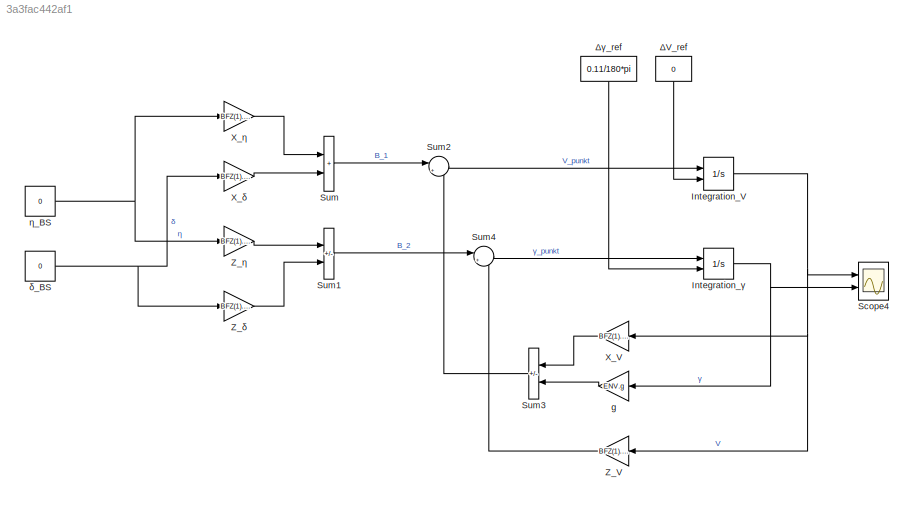
MODEL slx_3a3fac442af1
KIND model
CONFIG AbsTol = auto
CONFIG EnableMultiTasking = off
CONFIG FixedStep = 0.002
CONFIG MaxStep = auto
CONFIG MinStep = auto
CONFIG RelTol = 1e-3
CONFIG SampleTimeConstraint = Unconstrained
CONFIG SolverName = ode4
CONFIG StartTime = 0.0
CONFIG StopTime = 1000
BLOCK [Integrator] Integration_V
  InitialConditionSource = external
  Ports = [2, 1]
BLOCK [Integrator] Integration_γ
  InitialConditionSource = external
  Ports = [2, 1]
BLOCK [Scope] Scope4
  Floating = off
  NumInputPorts = 2
  Ports = [2]
  ScopeSpecificationString = Simulink.scopes.TimeScopeBlockCfg('CurrentConfiguration', extmgr.ConfigurationSet(extmgr.Configuration('Core','General UI',true),extmgr.Configuration('Core','Source UI',true),extmgr.Configuration('Sources','WiredSimulink',true),extmgr.Configuration('Visuals','Time Domain',true,'SerializedDisplays',{struct('MinYLimReal','-0.3624','MaxYLimReal','0.32447','YLabelReal','','MinYLimMag','0.00000','MaxYL...<+1393ch>
BLOCK [Sum] Sum
  IconShape = rectangular
  Ports = [2, 1]
BLOCK [Sum] Sum1
  IconShape = rectangular
  Inputs = --
  Ports = [2, 1]
BLOCK [Sum] Sum2
  Inputs = |++
  Ports = [2, 1]
BLOCK [Sum] Sum3
  IconShape = rectangular
  Inputs = +-
  Ports = [2, 1]
BLOCK [Sum] Sum4
  Inputs = |+-
  Ports = [2, 1]
BLOCK [Gain] X_V
  Gain = BFZ(1).X_V
BLOCK [Gain] X_δ
  Gain = BFZ(1).X_delta
BLOCK [Gain] X_η
  Gain = BFZ(1).X_eta
BLOCK [Gain] Z_V
  Gain = BFZ(1).Z_V
BLOCK [Gain] Z_δ
  Gain = BFZ(1).Z_delta
BLOCK [Gain] Z_η
  Gain = BFZ(1).Z_eta
BLOCK [Gain] g
  Gain = ENV.g
BLOCK [Constant] ΔV_ref
  NameLocation = top
  Value = 0
BLOCK [Constant] Δγ_ref
  NameLocation = top
  Value = 0.11/180*pi
BLOCK [Constant] δ_BS
  Value = 0
BLOCK [Constant] η_BS
  Value = 0
NET Integration_V:1 -> Scope4:1, X_V:1, Z_V:1
NET Integration_γ:1 -> Scope4:2, g:1
LINE Sum1:1 -> Sum4:1
LINE Sum2:1 -> Integration_V:1
LINE Sum3:1 -> Sum2:2
LINE Sum4:1 -> Integration_γ:1
LINE Sum:1 -> Sum2:1
LINE X_V:1 -> Sum3:1
LINE X_δ:1 -> Sum:2
LINE X_η:1 -> Sum:1
LINE Z_V:1 -> Sum4:2
LINE Z_δ:1 -> Sum1:2
LINE Z_η:1 -> Sum1:1
LINE g:1 -> Sum3:2
LINE ΔV_ref:1 -> Integration_V:2
LINE Δγ_ref:1 -> Integration_γ:2
NET δ_BS:1 -> X_δ:1, Z_δ:1
NET η_BS:1 -> X_η:1, Z_η:1
note: NET lines group one-source signal fan-out (src -> all destinations, sorted); 1:1 wires keep LINE
